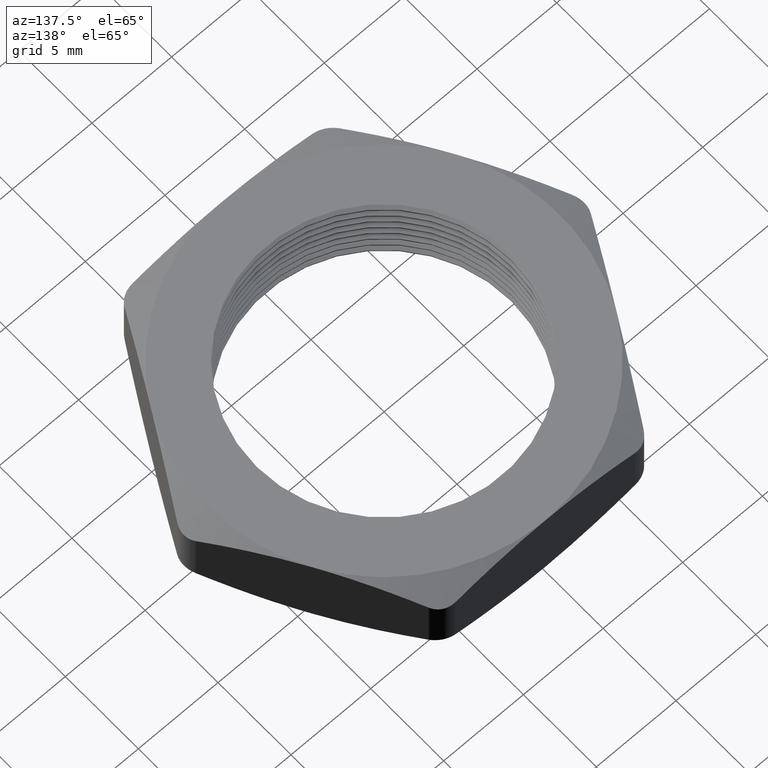
[diagram: clean part render]
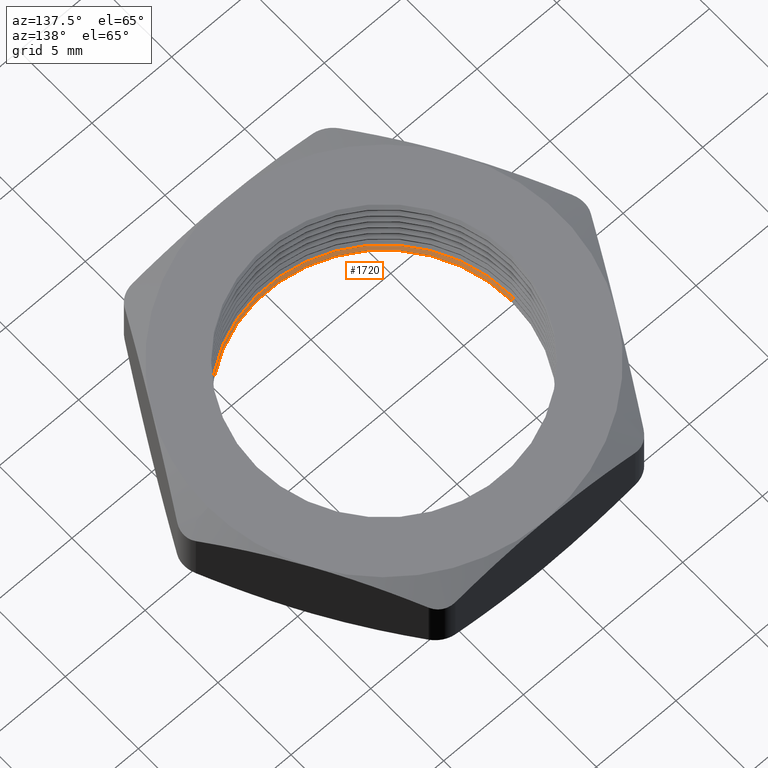
[diagram: same view with one face highlighted and labeled with its STEP entity id]
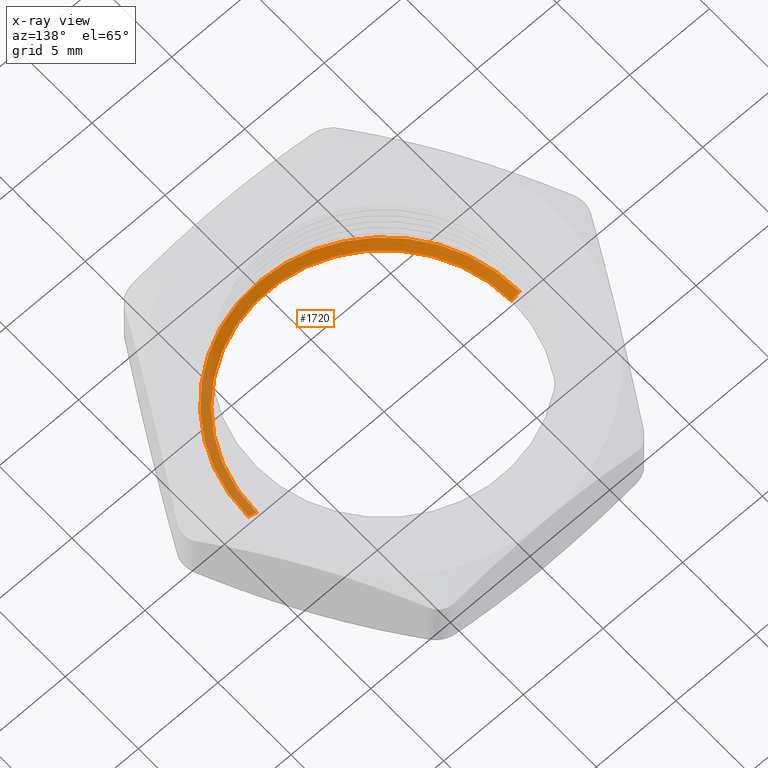
[diagram: x-ray of the same camera — body ghosted, the highlighted face saturated]
A machine part, auxiliary view. The second image highlights one B-rep face of the part: STEP entity #1720.
The next image is the same camera in x-ray: the body ghosted, the highlighted face saturated — about 27% of this face is hidden behind the body in this view.
In plain terms, the highlighted conical surface has half-angle 60 deg.
Its self-contained STEP definition (entity closure, byte-faithful):
#284 = CARTESIAN_POINT ( 'NONE',  ( 0.0000000000000000000, 0.0000000000000000000, 0.001905989232415139300 ) ) ;
#286 = DIRECTION ( 'NONE',  ( 0.0000000000000000000, 0.0000000000000000000, 1.000000000000000000 ) ) ;
#287 = AXIS2_PLACEMENT_3D ( 'NONE', #284, #286, #316 ) ;
#288 = CIRCLE ( 'NONE', #287, 0.3150000000000000000 ) ;
#316 = DIRECTION ( 'NONE',  ( 1.000000000000000000, 0.0000000000000000000, 0.0000000000000000000 ) ) ;
#489 = DIRECTION ( 'NONE',  ( 0.8660254037844359300, 0.0000000000000000000, 0.5000000000000046600 ) ) ;
#490 = VECTOR ( 'NONE', #489, 39.37007874015748100 ) ;
#491 = CARTESIAN_POINT ( 'NONE',  ( 0.3150000000000000000, 0.0000000000000000000, 0.001905989232415139300 ) ) ;
#495 = LINE ( 'NONE', #491, #490 ) ;
#552 = CARTESIAN_POINT ( 'NONE',  ( -0.3150000000000000000, 0.0000000000000000000, 0.001905989232415139300 ) ) ;
#553 = DIRECTION ( 'NONE',  ( 1.000000000000000000, 0.0000000000000000000, 0.0000000000000000000 ) ) ;
#554 = DIRECTION ( 'NONE',  ( 0.0000000000000000000, 0.0000000000000000000, 1.000000000000000000 ) ) ;
#555 = CARTESIAN_POINT ( 'NONE',  ( 0.0000000000000000000, 0.0000000000000000000, 0.001905989232415139300 ) ) ;
#556 = AXIS2_PLACEMENT_3D ( 'NONE', #555, #554, #553 ) ;
#557 = CONICAL_SURFACE ( 'NONE', #556, 0.3150000000000000000, 1.047197551196592300 ) ;
#558 = FACE_OUTER_BOUND ( 'NONE', #1721, .T. ) ;
#693 = CARTESIAN_POINT ( 'NONE',  ( 0.3150000000000000000, 3.857637417314162700E-017, 0.001905989232415139300 ) ) ;
#725 = CARTESIAN_POINT ( 'NONE',  ( 0.3349999999999999600, 4.102566777143632800E-017, 0.01345299461620779400 ) ) ;
#726 = DIRECTION ( 'NONE',  ( 1.000000000000000000, 0.0000000000000000000, 0.0000000000000000000 ) ) ;
#727 = DIRECTION ( 'NONE',  ( 0.0000000000000000000, 0.0000000000000000000, 1.000000000000000000 ) ) ;
#728 = CARTESIAN_POINT ( 'NONE',  ( 0.0000000000000000000, 0.0000000000000000000, 0.01345299461620779400 ) ) ;
#729 = AXIS2_PLACEMENT_3D ( 'NONE', #728, #727, #726 ) ;
#730 = CIRCLE ( 'NONE', #729, 0.3349999999999999600 ) ;
#731 = CARTESIAN_POINT ( 'NONE',  ( -0.3349999999999999600, 0.0000000000000000000, 0.01345299461620779400 ) ) ;
#738 = DIRECTION ( 'NONE',  ( -0.8660254037844359300, 1.060575238724903700E-016, 0.5000000000000046600 ) ) ;
#739 = VECTOR ( 'NONE', #738, 39.37007874015748100 ) ;
#746 = CARTESIAN_POINT ( 'NONE',  ( -0.3150000000000000000, 3.857637417314162700E-017, 0.001905989232415139300 ) ) ;
#747 = LINE ( 'NONE', #746, #739 ) ;
#1691 = EDGE_CURVE ( 'NONE', #1811, #1821, #495, .T. ) ;
#1720 = ADVANCED_FACE ( 'NONE', ( #558 ), #557, .F. ) ;
#1721 = EDGE_LOOP ( 'NONE', ( #1734, #1813, #1819, #1822 ) ) ;
#1722 = VERTEX_POINT ( 'NONE', #552 ) ;
#1734 = ORIENTED_EDGE ( 'NONE', *, *, #1735, .F. ) ;
#1735 = EDGE_CURVE ( 'NONE', #1722, #1811, #288, .T. ) ;
#1811 = VERTEX_POINT ( 'NONE', #693 ) ;
#1813 = ORIENTED_EDGE ( 'NONE', *, *, #1815, .T. ) ;
#1815 = EDGE_CURVE ( 'NONE', #1722, #1817, #747, .T. ) ;
#1817 = VERTEX_POINT ( 'NONE', #731 ) ;
#1819 = ORIENTED_EDGE ( 'NONE', *, *, #1820, .T. ) ;
#1820 = EDGE_CURVE ( 'NONE', #1817, #1821, #730, .T. ) ;
#1821 = VERTEX_POINT ( 'NONE', #725 ) ;
#1822 = ORIENTED_EDGE ( 'NONE', *, *, #1691, .F. ) ;